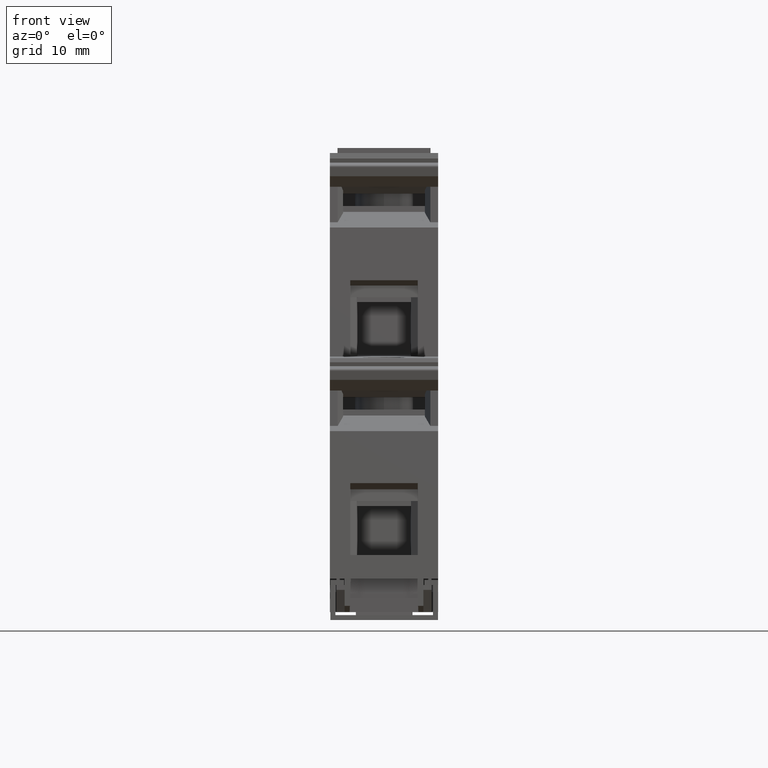
[diagram: clean part render]
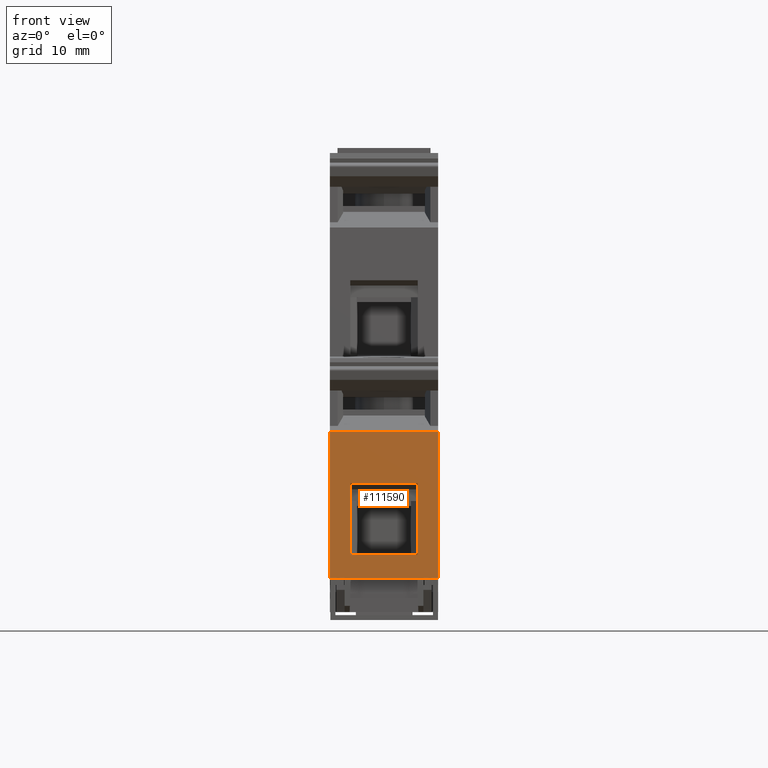
[diagram: same view with one face highlighted and labeled with its STEP entity id]
A machine part, front view. The second image highlights one B-rep face of the part: STEP entity #111590.
In plain terms, the highlighted planar face has unit normal (0, 1, 0).
Its self-contained STEP definition (entity closure, byte-faithful):
#26940=CARTESIAN_POINT('',(29.7804584000233,-8.66541060671706,
1.6642805651331E-11));
#26950=VERTEX_POINT('',#26940);
#26980=CARTESIAN_POINT('',(29.7804584000233,-8.66541060671706,
-3.04022358727079E-11));
#26990=DIRECTION('',(-5.89811265967869E-17,1.00724932385237E-30,1.));
#27000=VECTOR('',#26990,1.);
#27010=LINE('',#26980,#27000);
#27020=CARTESIAN_POINT('',(29.7804584000233,-8.66541060671706,
17.5999999999704));
#27030=VERTEX_POINT('',#27020);
#27040=EDGE_CURVE('',#26950,#27030,#27010,.T.);
#30230=CARTESIAN_POINT('',(-1.65273038803167,-8.66541060671745,
17.5999999999704));
#30240=DIRECTION('',(1.,1.25038868148408E-14,6.24505735487405E-17));
#30250=VECTOR('',#30240,1.);
#30260=LINE('',#30230,#30250);
#30270=CARTESIAN_POINT('',(5.76148759322794,-8.66541060671737,
17.5999999999704));
#30280=VERTEX_POINT('',#30270);
#30290=EDGE_CURVE('',#30280,#27030,#30260,.T.);
#40640=CARTESIAN_POINT('',(5.76148759322794,-8.66541060671736,
1.66418504671819E-11));
#40650=VERTEX_POINT('',#40640);
#41230=CARTESIAN_POINT('',(5.76148759322794,-8.66541060671737,
-3.04036525386658E-11));
#41240=DIRECTION('',(5.8979916241223E-17,-1.00724932385237E-30,-1.));
#41250=VECTOR('',#41240,1.);
#41260=LINE('',#41230,#41250);
#41270=EDGE_CURVE('',#30280,#40650,#41260,.T.);
#44100=CARTESIAN_POINT('',(-28.6243628162095,-8.6654106067178,
-3.04061389471202E-11));
#44110=DIRECTION('',(1.,1.25038868148408E-14,5.89811265967868E-17));
#44120=VECTOR('',#44110,1.);
#44130=LINE('',#44100,#44120);
#44140=EDGE_CURVE('',#40650,#26950,#44130,.T.);
#111140=CARTESIAN_POINT('',(6.17570115560102,-8.66541060671736,
-5.00172746678268E-10));
#111150=DIRECTION('',(-1.25038868148408E-14,1.,-1.74472752088142E-30));
#111160=DIRECTION('',(-1.,-1.25038868148408E-14,-5.8979916241223E-17));
#111170=AXIS2_PLACEMENT_3D('',#111140,#111150,#111160);
#111180=PLANE('',#111170);
#111190=CARTESIAN_POINT('',(-28.6243628162095,-8.6654106067178,
3.29999999997157));
#111200=DIRECTION('',(1.,1.25038868148408E-14,5.8979916241223E-17));
#111210=VECTOR('',#111200,1.);
#111220=LINE('',#111190,#111210);
#111230=CARTESIAN_POINT('',(14.2266705270882,-8.66541060671726,
3.29999999997157));
#111240=VERTEX_POINT('',#111230);
#111250=CARTESIAN_POINT('',(25.9201621144345,-8.66541060671711,
3.29999999997157));
#111260=VERTEX_POINT('',#111250);
#111270=EDGE_CURVE('',#111240,#111260,#111220,.T.);
#111280=ORIENTED_EDGE('',*,*,#111270,.F.);
#111290=CARTESIAN_POINT('',(25.9201621144345,-8.66541060671704,
-0.387681406625009));
#111300=DIRECTION('',(-5.8979916241223E-17,1.00724932385237E-30,1.));
#111310=VECTOR('',#111300,1.);
#111320=LINE('',#111290,#111310);
#111330=CARTESIAN_POINT('',(25.9201621144345,-8.66541060671711,
14.2999999990281));
#111340=VERTEX_POINT('',#111330);
#111350=EDGE_CURVE('',#111260,#111340,#111320,.T.);
#111360=ORIENTED_EDGE('',*,*,#111350,.F.);
#111370=CARTESIAN_POINT('',(-28.6243628162095,-8.6654106067178,
14.2999999990281));
#111380=DIRECTION('',(1.,1.25038868148408E-14,5.8979916241223E-17));
#111390=VECTOR('',#111380,1.);
#111400=LINE('',#111370,#111390);
#111410=CARTESIAN_POINT('',(14.2266705270882,-8.66541060671726,
14.2999999990281));
#111420=VERTEX_POINT('',#111410);
#111430=EDGE_CURVE('',#111420,#111340,#111400,.T.);
#111440=ORIENTED_EDGE('',*,*,#111430,.T.);
#111450=CARTESIAN_POINT('',(14.2266705270882,-8.66541060671729,
0.000536643954590486));
#111460=DIRECTION('',(6.24500451351651E-17,-9.63687195922763E-31,-1.));
#111470=VECTOR('',#111460,1.);
#111480=LINE('',#111450,#111470);
#111490=EDGE_CURVE('',#111420,#111240,#111480,.T.);
#111500=ORIENTED_EDGE('',*,*,#111490,.F.);
#111510=EDGE_LOOP('',(#111500,#111440,#111360,#111280));
#111520=FACE_BOUND('',#111510,.T.);
#111530=ORIENTED_EDGE('',*,*,#30290,.F.);
#111540=ORIENTED_EDGE('',*,*,#27040,.T.);
#111550=ORIENTED_EDGE('',*,*,#44140,.T.);
#111560=ORIENTED_EDGE('',*,*,#41270,.T.);
#111570=EDGE_LOOP('',(#111560,#111550,#111540,#111530));
#111580=FACE_OUTER_BOUND('',#111570,.T.);
#111590=ADVANCED_FACE('',(#111520,#111580),#111180,.F.);